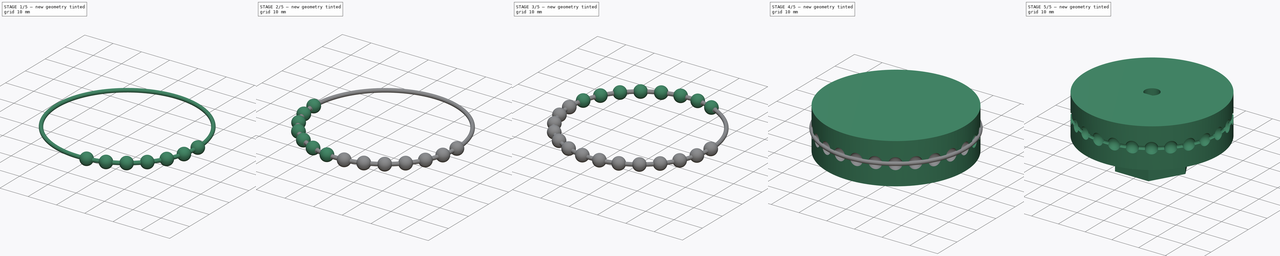
[diagram: build sequence overview — one tinted view per stage of 5, left to right]
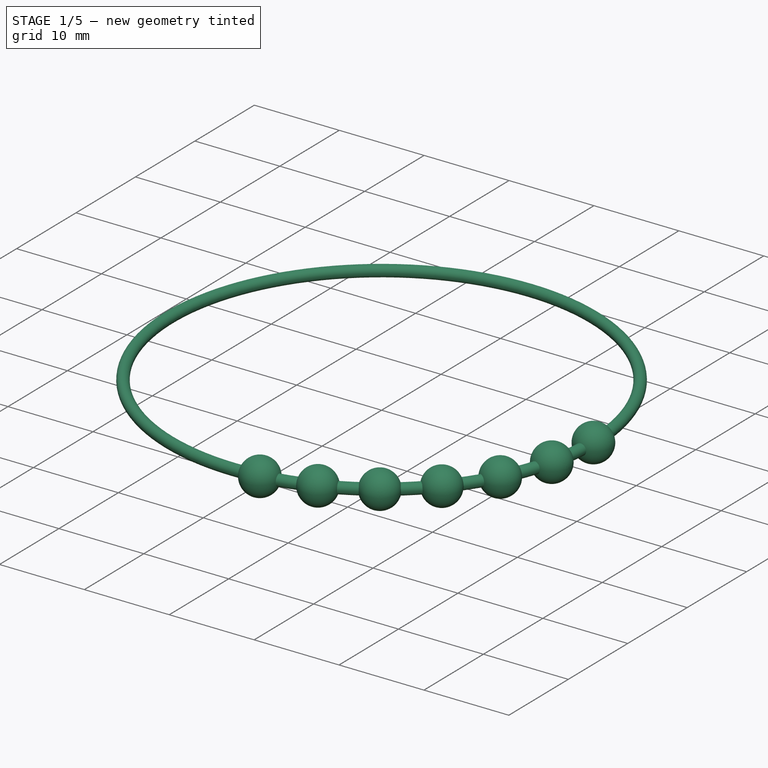
[diagram: stage 1 of 5 — iso view after this stage's code; geometry added in this stage tinted green]
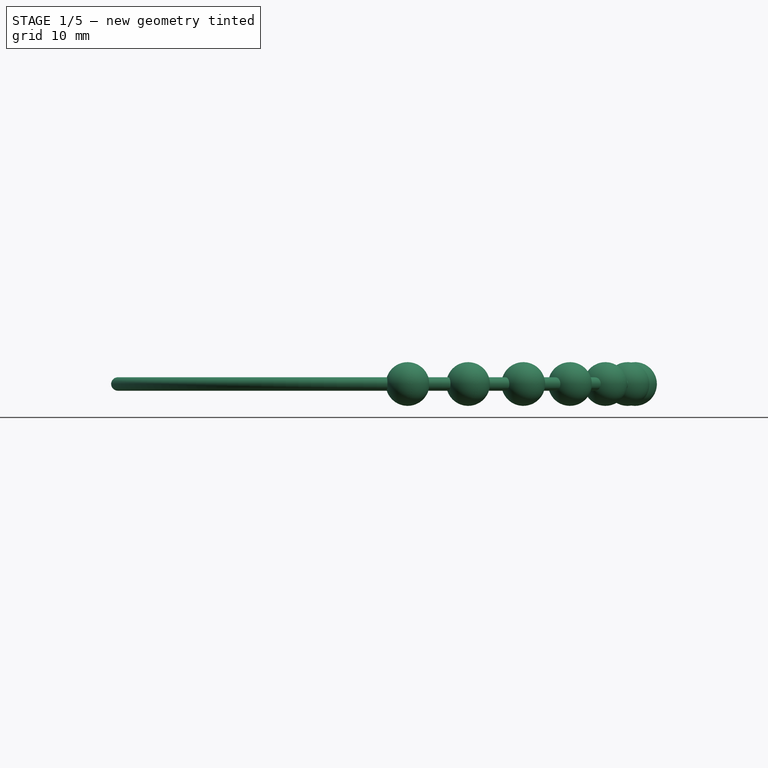
[diagram: stage 1 of 5 — front view after this stage's code; geometry added in this stage tinted green]
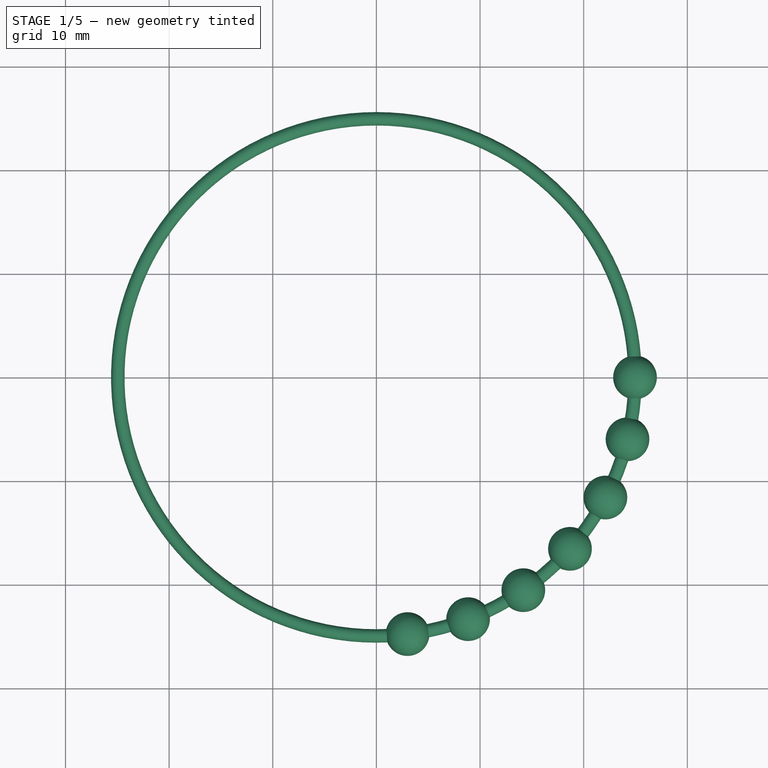
[diagram: stage 1 of 5 — top view after this stage's code; geometry added in this stage tinted green]
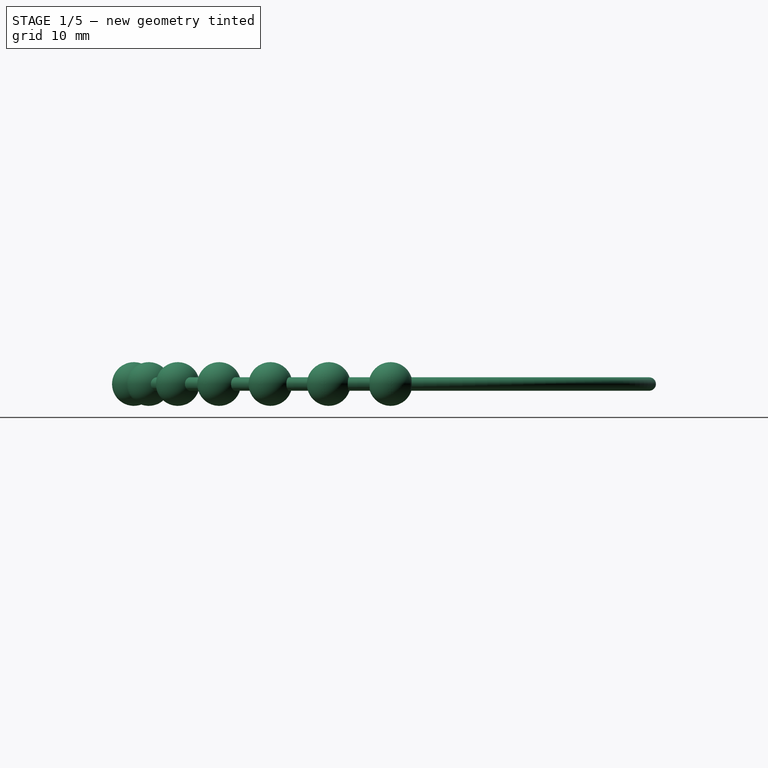
[diagram: stage 1 of 5 — right view after this stage's code; geometry added in this stage tinted green]
FCSTD DOCUMENT  (FreeCAD 0.21R33694 (Git))
Label: agarre parametrico y cortina
License: All rights reserved
LicenseURL: https://en.wikipedia.org/wiki/All_rights_reserved
objects: Part::Sphere×26, PartDesign::SubShapeBinder×5, Sketcher::SketchObject×4, PartDesign::Pocket×4, App::Part×2, PartDesign::Body×2, Part::MultiFuse×2, Part::Cut×2, Part::Part2DObjectPython×2, PartDesign::Pad×1, App::DocumentObjectGroup×1, Part::Cylinder×1, Part::FeaturePython×1, Part::Revolution×1, PartDesign::FeatureBase×1
note: 57 computed .brp shape members not serialized (recipe doc carries the construction recipe); baked Part::Feature solids carry a one-line shape summary decoded from their .brp

FEATURE [Part::Sphere] sphere019
  Angle1 = -90
  Angle2 = 90
  Angle3 = 360
  AttacherType = Attacher::AttachEngine3D
  Placement = pos=(3.00767,-24.7704,0) rot=(0,0,-1;1.44997rad)
  Radius = 2.1075
FEATURE [Part::Sphere] sphere020
  Angle1 = -90
  Angle2 = 90
  Angle3 = 360
  AttacherType = Attacher::AttachEngine3D
  Placement = pos=(8.84821,-23.3308,0) rot=(0,0,-1;1.2083rad)
  Radius = 2.1075
FEATURE [Part::Sphere] sphere021
  Angle1 = -90
  Angle2 = 90
  Angle3 = 360
  AttacherType = Attacher::AttachEngine3D
  Placement = pos=(14.1745,-20.5353,0) rot=(0,0,-1;0.966644rad)
  Radius = 2.1075
FEATURE [Part::Sphere] sphere022
  Angle1 = -90
  Angle2 = 90
  Angle3 = 360
  AttacherType = Attacher::AttachEngine3D
  Placement = pos=(18.6771,-16.5464,0) rot=(0,0,-1;0.724983rad)
  Radius = 2.1075
FEATURE [Part::Sphere] sphere023
  Angle1 = -90
  Angle2 = 90
  Angle3 = 360
  AttacherType = Attacher::AttachEngine3D
  Placement = pos=(22.0942,-11.5959,0) rot=(0,0,-1;0.483322rad)
  Radius = 2.1075
FEATURE [Part::Sphere] sphere024
  Angle1 = -90
  Angle2 = 90
  Angle3 = 360
  AttacherType = Attacher::AttachEngine3D
  Placement = pos=(24.2272,-5.97148,0) rot=(0,0,-1;0.241661rad)
  Radius = 2.1075
FEATURE [Part::Sphere] sphere025
  Angle1 = -90
  Angle2 = 90
  Angle3 = 360
  AttacherType = Attacher::AttachEngine3D
  Placement = pos=(24.9523,0,0) rot=(0,0,1;0rad)
  Radius = 2.1075
FEATURE [Part::Part2DObjectPython] circle  # Draft 2D object (typed FeaturePython)
  Area = 1.31713
  FirstAngle = 0
  LastAngle = 0
  MakeFace = true
  Radius = 0.6475
FEATURE [Part::Part2DObjectPython] Circle  # Draft 2D object (typed FeaturePython)
  Area = 1.31713
  FirstAngle = 0
  LastAngle = 0
  MakeFace = true
  Placement = pos=(24.9523,0,0) rot=(0,0,1;0rad)
  Radius = 0.6475
FEATURE [Part::FeaturePython] RefineRotateExtrude  # WARN: FeaturePython — macro-defined, semantics opaque (R4)
  Base = -> Circle
FEATURE [Part::Revolution] RotateExtrude
  Angle = 360
  Axis = (0,1,0)
  Base = (0,0,0)
  FaceMakerClass = Part::FaceMakerBullseye
  Placement = pos=(0,0,0) rot=(0.57735,-0.57735,-0.57735;2.0944rad)
  Solid = false
  Source = -> RefineRotateExtrude
  Symmetric = false
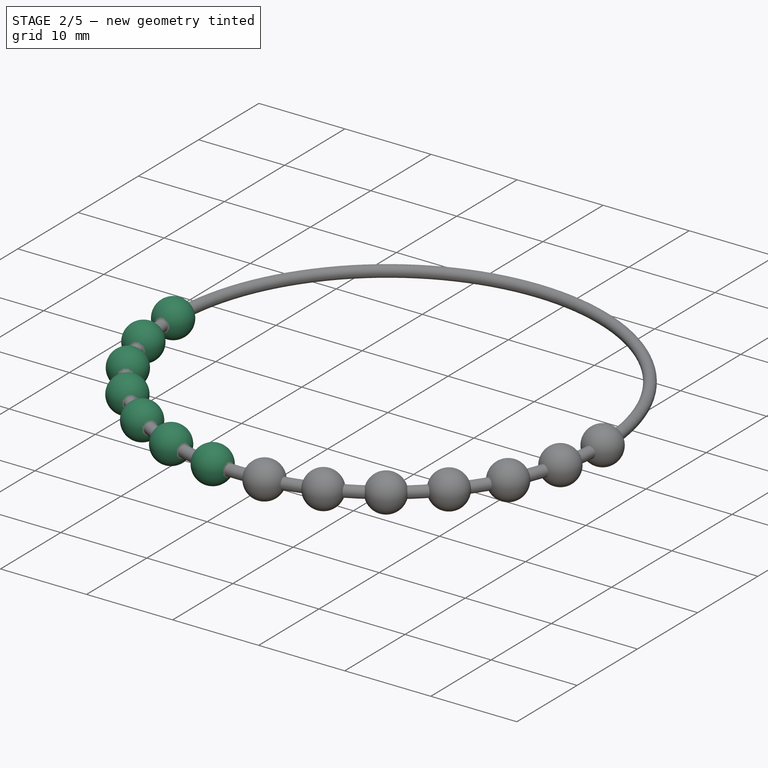
[diagram: stage 2 of 5 — iso view after this stage's code; geometry added in this stage tinted green]
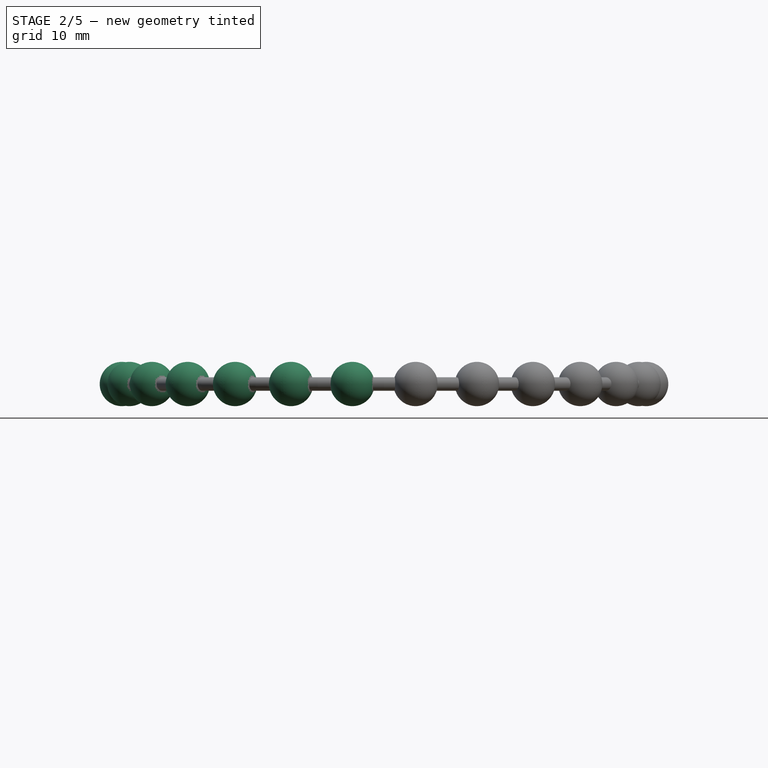
[diagram: stage 2 of 5 — front view after this stage's code; geometry added in this stage tinted green]
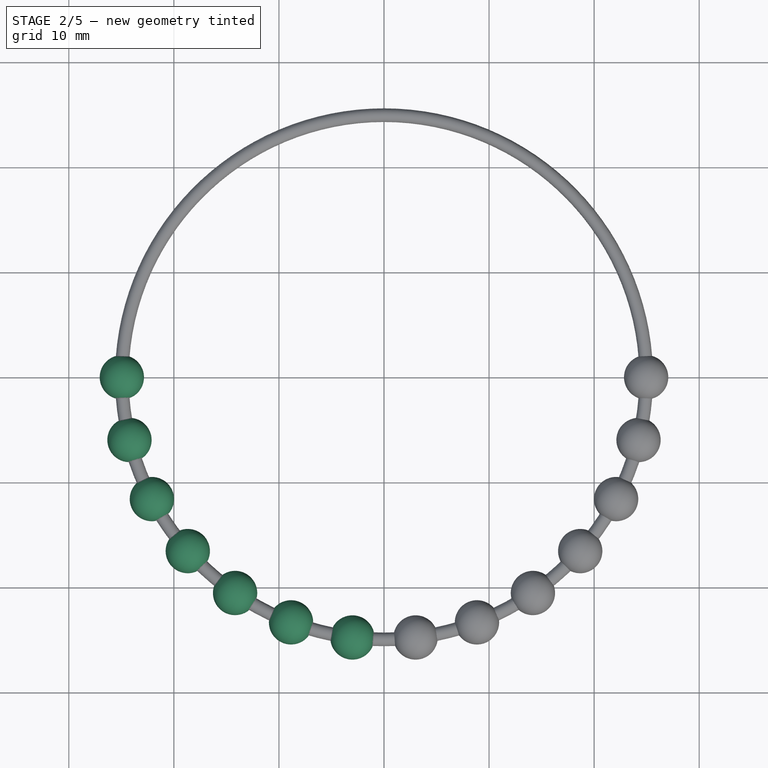
[diagram: stage 2 of 5 — top view after this stage's code; geometry added in this stage tinted green]
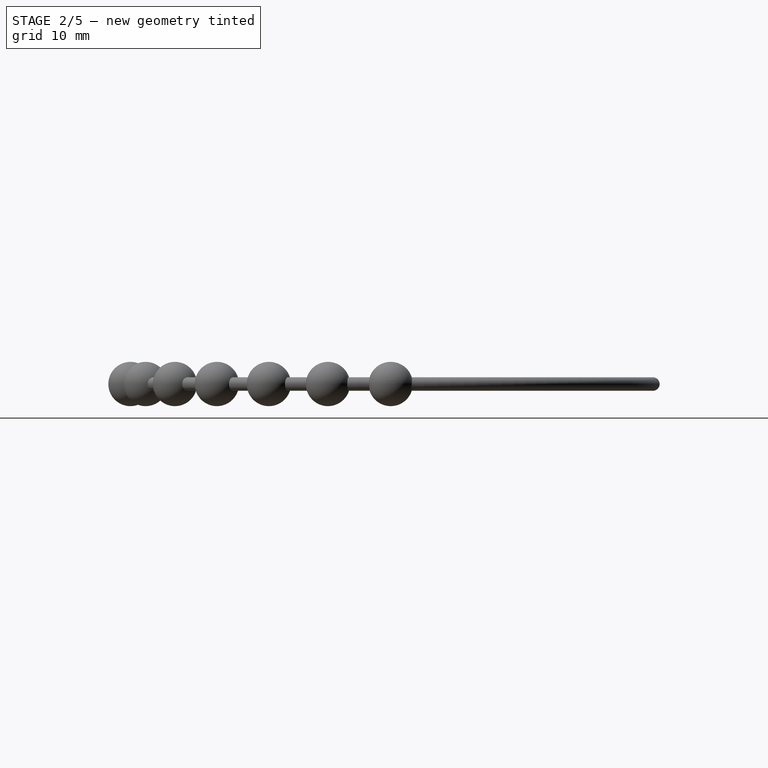
[diagram: stage 2 of 5 — right view after this stage's code; geometry added in this stage tinted green]
FEATURE [Part::Sphere] sphere012
  Angle1 = -90
  Angle2 = 90
  Angle3 = 360
  AttacherType = Attacher::AttachEngine3D
  Placement = pos=(-24.9523,3.1e-15,0) rot=(0,0,1;3.14159rad)
  Radius = 2.1075
FEATURE [Part::Sphere] sphere013
  Angle1 = -90
  Angle2 = 90
  Angle3 = 360
  AttacherType = Attacher::AttachEngine3D
  Placement = pos=(-24.2272,-5.97148,0) rot=(0,0,1;3.38325rad)
  Radius = 2.1075
FEATURE [Part::Sphere] sphere014
  Angle1 = -90
  Angle2 = 90
  Angle3 = 360
  AttacherType = Attacher::AttachEngine3D
  Placement = pos=(-22.0942,-11.5959,0) rot=(0,0,1;3.62491rad)
  Radius = 2.1075
FEATURE [Part::Sphere] sphere015
  Angle1 = -90
  Angle2 = 90
  Angle3 = 360
  AttacherType = Attacher::AttachEngine3D
  Placement = pos=(-18.6771,-16.5464,0) rot=(0,0,1;3.86658rad)
  Radius = 2.1075
FEATURE [Part::Sphere] sphere016
  Angle1 = -90
  Angle2 = 90
  Angle3 = 360
  AttacherType = Attacher::AttachEngine3D
  Placement = pos=(-14.1745,-20.5353,0) rot=(0,0,1;4.10824rad)
  Radius = 2.1075
FEATURE [Part::Sphere] sphere017
  Angle1 = -90
  Angle2 = 90
  Angle3 = 360
  AttacherType = Attacher::AttachEngine3D
  Placement = pos=(-8.84821,-23.3308,0) rot=(0,0,-1;1.93329rad)
  Radius = 2.1075
FEATURE [Part::Sphere] sphere018
  Angle1 = -90
  Angle2 = 90
  Angle3 = 360
  AttacherType = Attacher::AttachEngine3D
  Placement = pos=(-3.00767,-24.7704,0) rot=(0,0,-1;1.69163rad)
  Radius = 2.1075
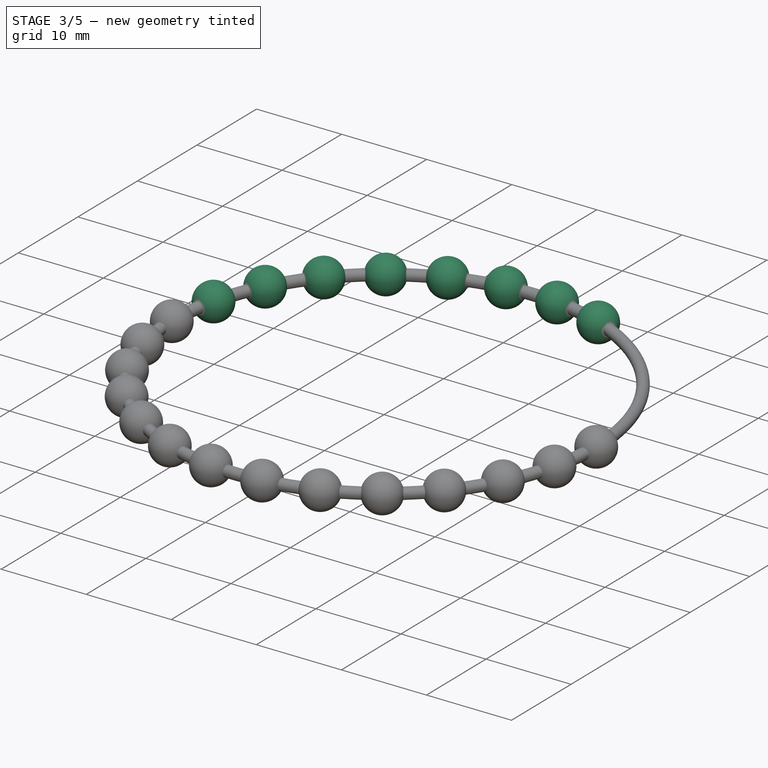
[diagram: stage 3 of 5 — iso view after this stage's code; geometry added in this stage tinted green]
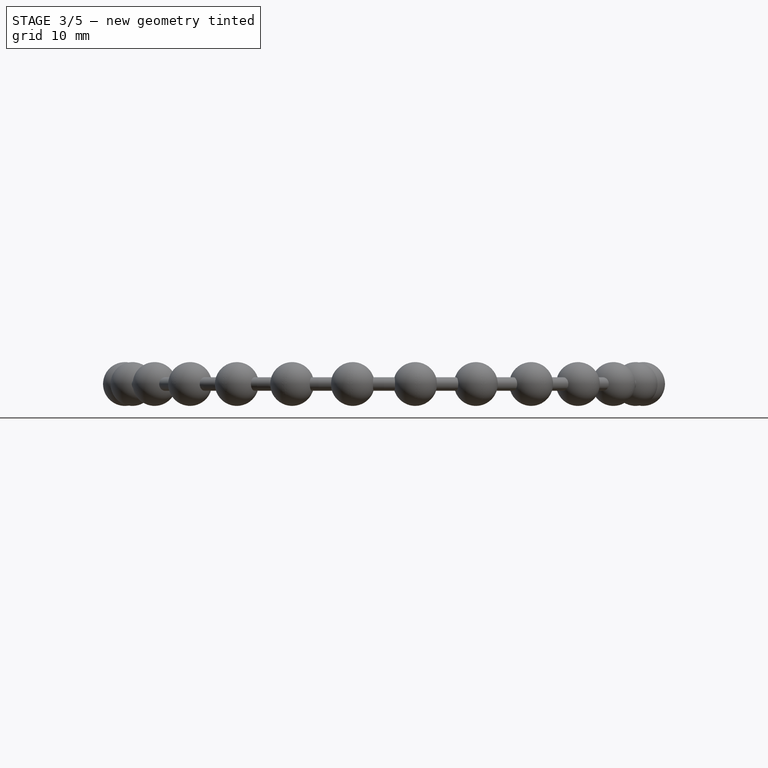
[diagram: stage 3 of 5 — front view after this stage's code; geometry added in this stage tinted green]
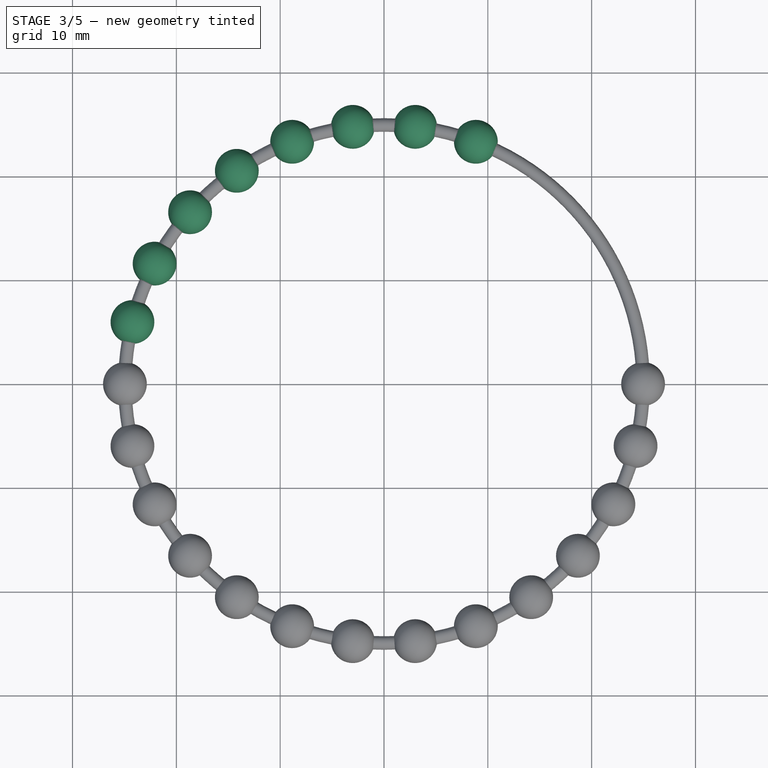
[diagram: stage 3 of 5 — top view after this stage's code; geometry added in this stage tinted green]
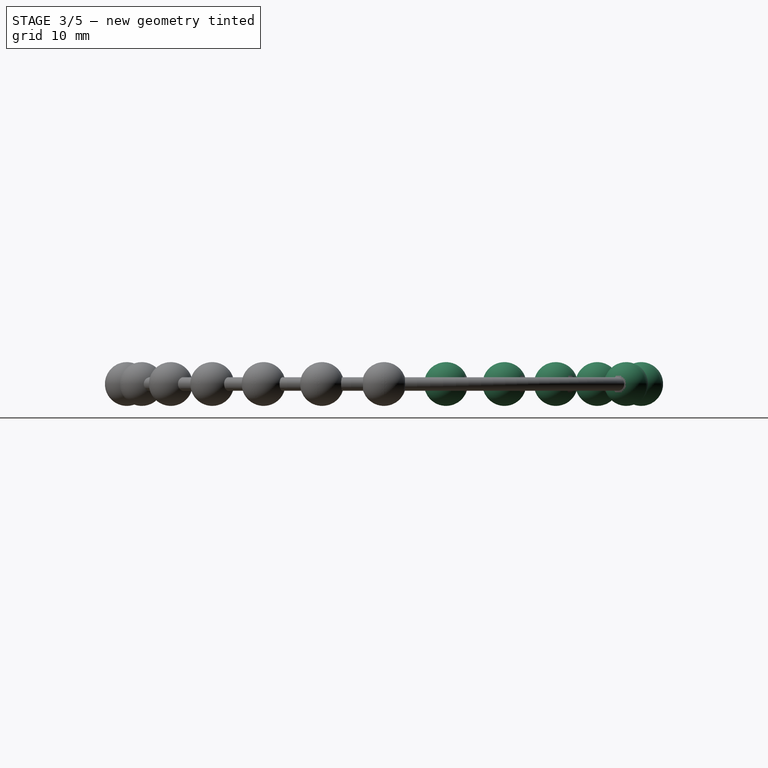
[diagram: stage 3 of 5 — right view after this stage's code; geometry added in this stage tinted green]
FEATURE [Part::Sphere] sphere004
  Angle1 = -90
  Angle2 = 90
  Angle3 = 360
  AttacherType = Attacher::AttachEngine3D
  Placement = pos=(8.84821,23.3308,0) rot=(0,0,1;1.2083rad)
  Radius = 2.1075
FEATURE [Part::Sphere] sphere005
  Angle1 = -90
  Angle2 = 90
  Angle3 = 360
  AttacherType = Attacher::AttachEngine3D
  Placement = pos=(3.00767,24.7704,0) rot=(0,0,1;1.44997rad)
  Radius = 2.1075
FEATURE [Part::Sphere] sphere006
  Angle1 = -90
  Angle2 = 90
  Angle3 = 360
  AttacherType = Attacher::AttachEngine3D
  Placement = pos=(-3.00767,24.7704,0) rot=(0,0,1;1.69163rad)
  Radius = 2.1075
FEATURE [Part::Sphere] sphere007
  Angle1 = -90
  Angle2 = 90
  Angle3 = 360
  AttacherType = Attacher::AttachEngine3D
  Placement = pos=(-8.84821,23.3308,0) rot=(0,0,1;1.93329rad)
  Radius = 2.1075
FEATURE [Part::Sphere] sphere008
  Angle1 = -90
  Angle2 = 90
  Angle3 = 360
  AttacherType = Attacher::AttachEngine3D
  Placement = pos=(-14.1745,20.5353,0) rot=(0,0,1;2.17495rad)
  Radius = 2.1075
FEATURE [Part::Sphere] sphere009
  Angle1 = -90
  Angle2 = 90
  Angle3 = 360
  AttacherType = Attacher::AttachEngine3D
  Placement = pos=(-18.6771,16.5464,0) rot=(0,0,1;2.41661rad)
  Radius = 2.1075
FEATURE [Part::Sphere] sphere010
  Angle1 = -90
  Angle2 = 90
  Angle3 = 360
  AttacherType = Attacher::AttachEngine3D
  Placement = pos=(-22.0942,11.5959,0) rot=(0,0,1;2.65827rad)
  Radius = 2.1075
FEATURE [Part::Sphere] sphere011
  Angle1 = -90
  Angle2 = 90
  Angle3 = 360
  AttacherType = Attacher::AttachEngine3D
  Placement = pos=(-24.2272,5.97148,0) rot=(0,0,1;2.89993rad)
  Radius = 2.1075
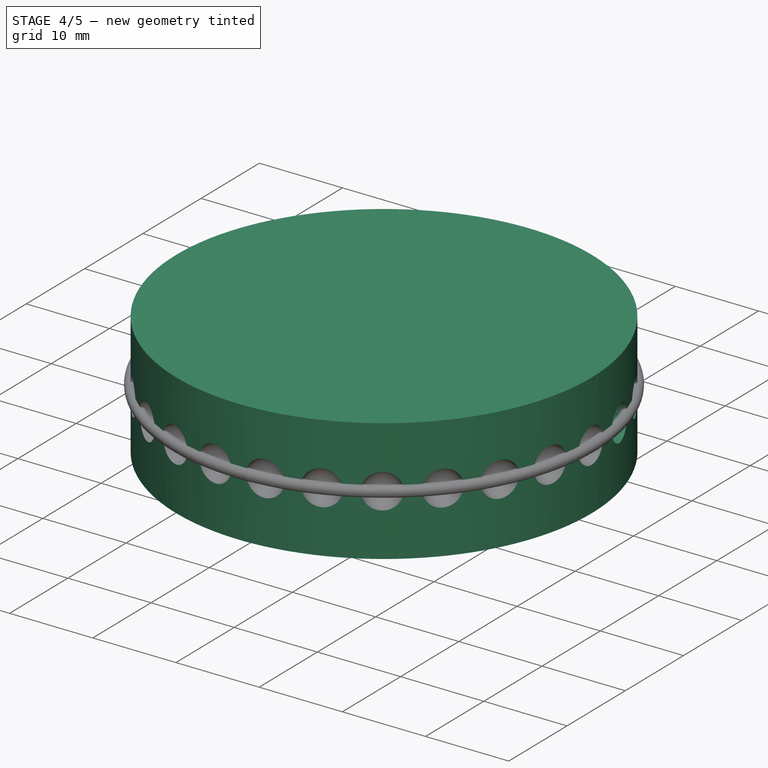
[diagram: stage 4 of 5 — iso view after this stage's code; geometry added in this stage tinted green]
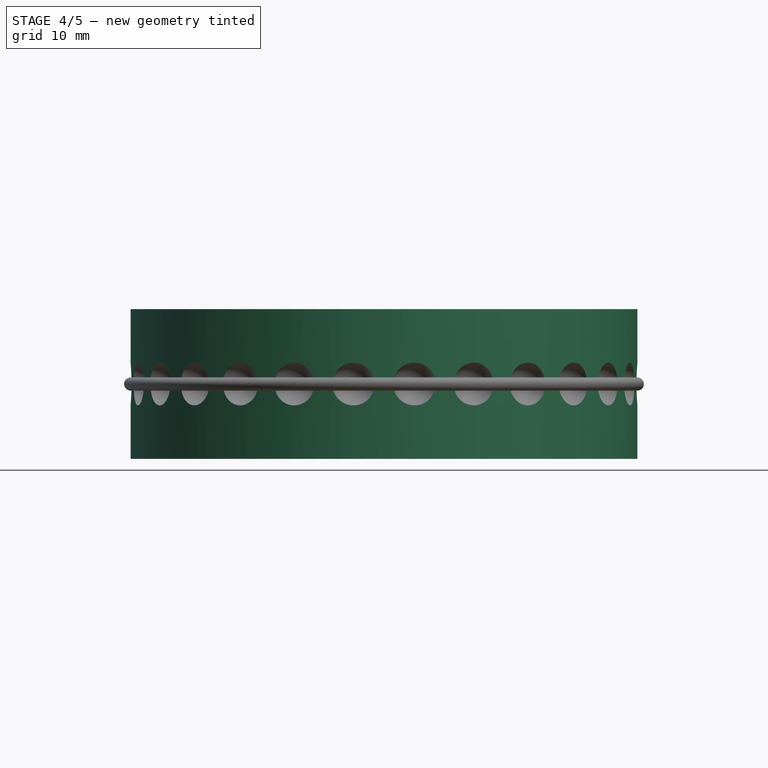
[diagram: stage 4 of 5 — front view after this stage's code; geometry added in this stage tinted green]
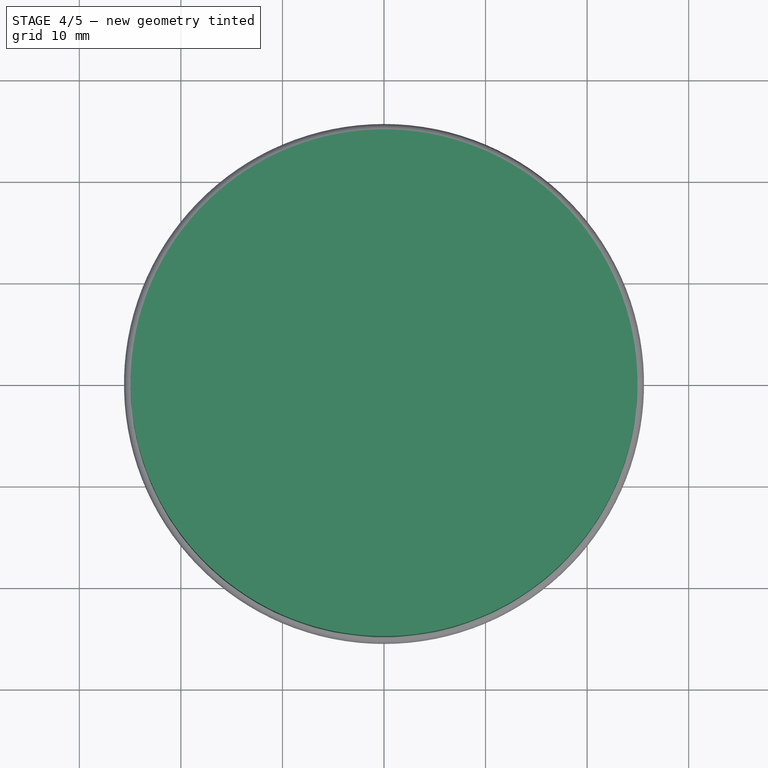
[diagram: stage 4 of 5 — top view after this stage's code; geometry added in this stage tinted green]
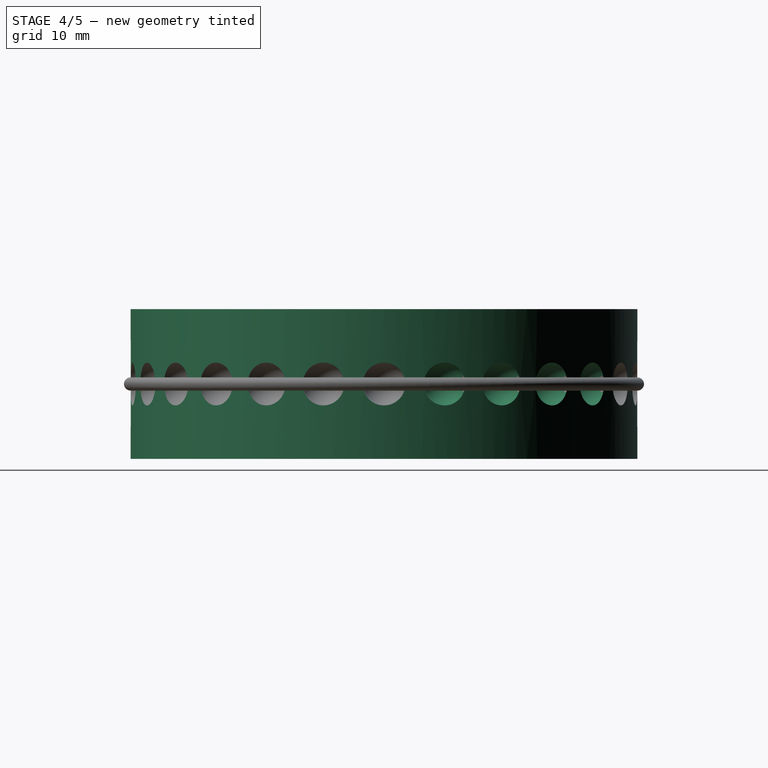
[diagram: stage 4 of 5 — right view after this stage's code; geometry added in this stage tinted green]
FEATURE [PartDesign::Body] Body  label="agarre"
  Group = -> [Binder,Pad,Binder001,Pocket,Binder002,Pocket001,Binder003,Pocket002]
  Origin = -> Origin001
  Tip = -> Pocket002
FEATURE [Part::Cylinder] cylinder
  Angle = 360
  AttacherType = Attacher::AttachEngine3D
  FirstAngle = 0
  Height = 14.7525
  Placement = pos=(0,0,-7.37625) rot=(0,0,1;0rad)
  Radius = 24.9523
  SecondAngle = 0
FEATURE [Part::Sphere] sphere
  Angle1 = -90
  Angle2 = 90
  Angle3 = 360
  AttacherType = Attacher::AttachEngine3D
  Placement = pos=(24.2272,5.97148,0) rot=(0,0,1;0.241661rad)
  Radius = 2.1075
FEATURE [Part::Sphere] sphere001
  Angle1 = -90
  Angle2 = 90
  Angle3 = 360
  AttacherType = Attacher::AttachEngine3D
  Placement = pos=(22.0942,11.5959,0) rot=(0,0,1;0.483322rad)
  Radius = 2.1075
FEATURE [Part::Sphere] sphere002
  Angle1 = -90
  Angle2 = 90
  Angle3 = 360
  AttacherType = Attacher::AttachEngine3D
  Placement = pos=(18.6771,16.5464,0) rot=(0,0,1;0.724983rad)
  Radius = 2.1075
FEATURE [Part::Sphere] sphere003
  Angle1 = -90
  Angle2 = 90
  Angle3 = 360
  AttacherType = Attacher::AttachEngine3D
  Placement = pos=(14.1745,20.5353,0) rot=(0,0,1;0.966644rad)
  Radius = 2.1075
FEATURE [Part::MultiFuse] Group001
  Shapes = -> [sphere,sphere001,sphere002,sphere003,sphere004,sphere005,sphere006,sphere007,sphere008,sphere009,sphere010,sphere011,sphere012,sphere013,sphere014,sphere015,sphere016,sphere017,sphere018,sphere019,sphere020,sphere021,sphere022,sphere023,sphere024,sphere025]
FEATURE [Part::Cut] difference
  Base = -> cylinder
  Tool = -> Group001
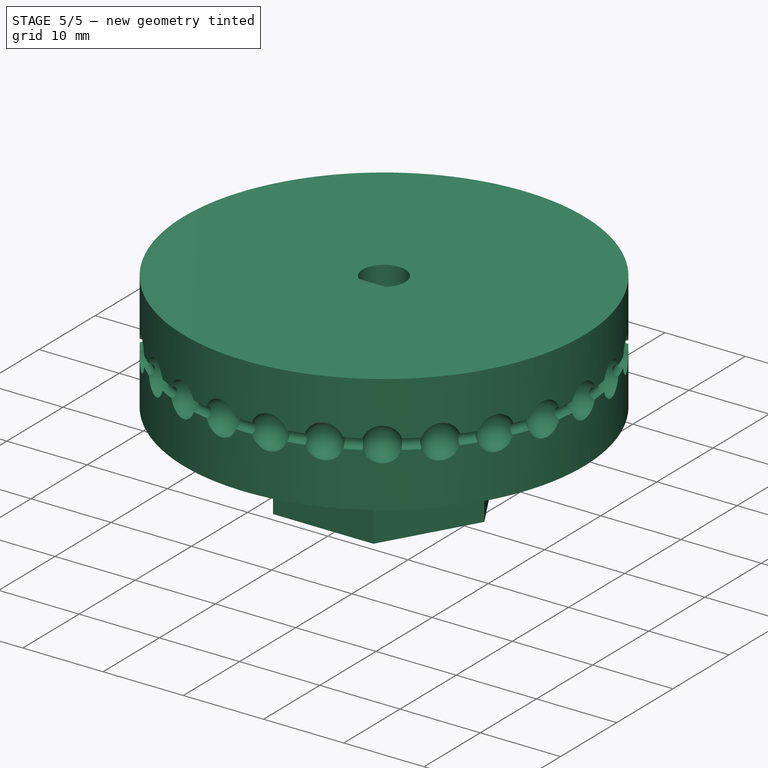
[diagram: stage 5 of 5 — iso view after this stage's code; geometry added in this stage tinted green]
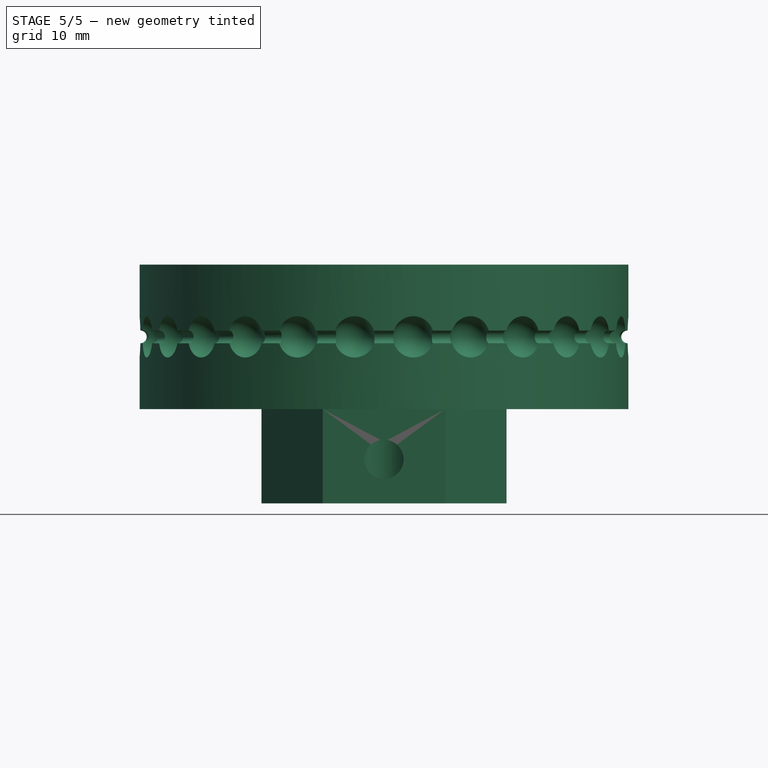
[diagram: stage 5 of 5 — front view after this stage's code; geometry added in this stage tinted green]
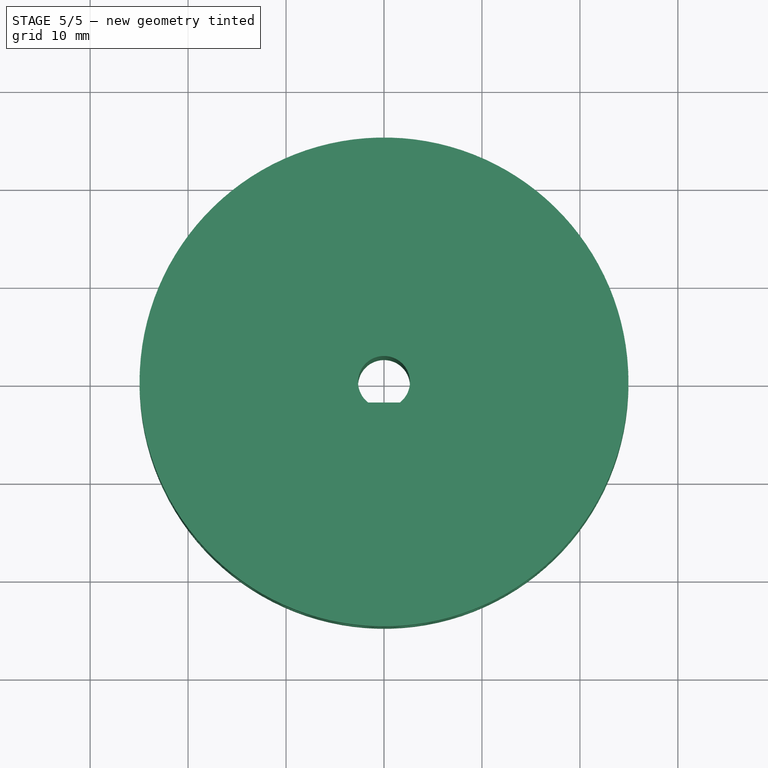
[diagram: stage 5 of 5 — top view after this stage's code; geometry added in this stage tinted green]
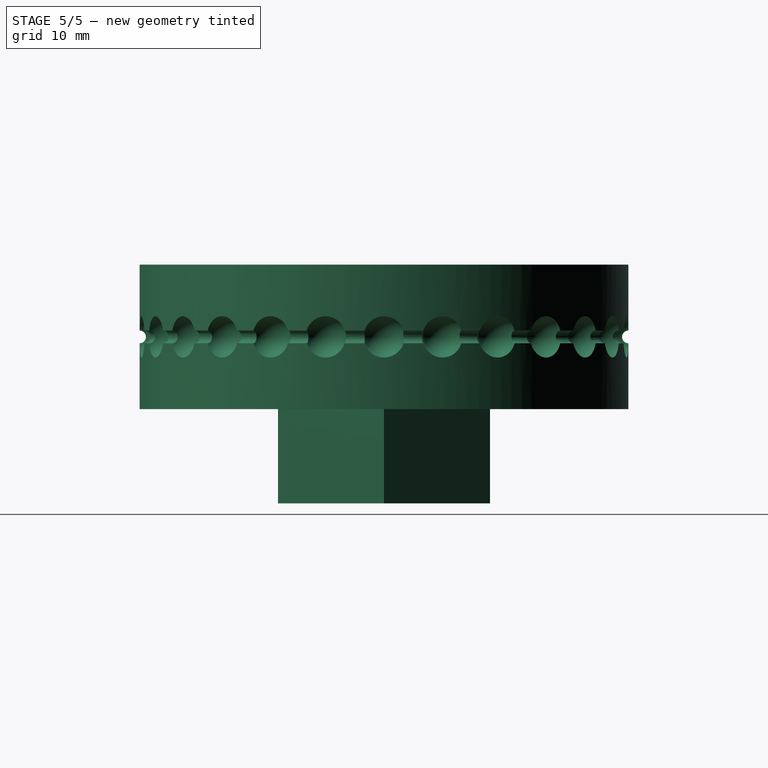
[diagram: stage 5 of 5 — right view after this stage's code; geometry added in this stage tinted green]
FEATURE [Sketcher::SketchObject] Sketch  label="base"
  FullyConstrained = true
  MapMode = 5
  Support = -> [XY_Plane]
  sketch-geometry (7):
    g0: LineSegment StartX=12.5 StartY=0 StartZ=0 EndX=6.25 EndY=10.8253 EndZ=0
    g1: LineSegment StartX=6.25 StartY=10.8253 StartZ=0 EndX=-6.25 EndY=10.8253 EndZ=0
    g2: LineSegment StartX=-6.25 StartY=10.8253 StartZ=0 EndX=-12.5 EndY=0 EndZ=0
    g3: LineSegment StartX=-12.5 StartY=0 StartZ=0 EndX=-6.25 EndY=-10.8253 EndZ=0
    g4: LineSegment StartX=-6.25 StartY=-10.8253 StartZ=0 EndX=6.25 EndY=-10.8253 EndZ=0
    g5: LineSegment StartX=6.25 StartY=-10.8253 StartZ=0 EndX=12.5 EndY=0 EndZ=0
    g6: Circle CenterX=0 CenterY=0 CenterZ=0 NormalX=0 NormalY=0 NormalZ=1 AngleXU=0 Radius=12.5
  constraints (16):
    c: Coincident(g0,g1)
    c: Coincident(g1,g2)
    c: Coincident(g2,g3)
    c: Coincident(g3,g4)
    c: Coincident(g4,g5)
    c: Coincident(g5,g0)
    c: Equal(g0, g1-g5) x5
    c: PointOnObject(g0,g6)
    c: PointOnObject(g1,g6)
    c: PointOnObject(g2,g6)
    c: PointOnObject(g3,g6)
    c: PointOnObject(g4,g6)
    c: PointOnObject(g5,g6)
    c: Coincident(g6,g-1)
    c: PointOnObject(g5,g-1)
    c: Diameter(g6) = 25
FEATURE [PartDesign::SubShapeBinder] Binder
  BindCopyOnChange = 0
  BindMode = 0
  ClaimChildren = false
  Context = -> Part [Body.Binder.]
  Fuse = false
  MakeFace = true
  OffsetFill = false
  OffsetIntersection = false
  OffsetJoinType = 0
  OffsetOpenResult = false
  PartialLoad = false
  Relative = true
  Support = -> [Group[Sketch.]]
  _Version = 2
FEATURE [PartDesign::Pad] Pad
  Direction = (0,0,1)
  Length = 10
  Length2 = 10
  Profile = -> Binder
  Type = 0
FEATURE [Sketcher::SketchObject] Sketch001  label="eje"
  FullyConstrained = true
  MapMode = 5
  Support = -> [XY_Plane]
  sketch-geometry (2):
    g0: ArcOfCircle CenterX=0 CenterY=0 CenterZ=0 NormalX=0 NormalY=0 NormalZ=1 AngleXU=0 Radius=2.65 StartAngle=5.36837 EndAngle=10.3396
    g1: LineSegment StartX=-1.61632 StartY=-2.1 StartZ=0 EndX=1.61632 EndY=-2.1 EndZ=0
  constraints (6):
    c: Coincident(g0,g-1)
    c: Diameter(g0) = 5.3
    c: Horizontal(g1)
    c: Distance(g0,g1) = 2.1
    c: Coincident(g0,g1)
    c: Coincident(g0,g1)
FEATURE [PartDesign::SubShapeBinder] Binder001
  BindCopyOnChange = 0
  BindMode = 0
  ClaimChildren = false
  Context = -> Part [Body.Binder001.]
  Fuse = false
  MakeFace = true
  OffsetFill = false
  OffsetIntersection = false
  OffsetJoinType = 0
  OffsetOpenResult = false
  PartialLoad = false
  Relative = true
  Support = -> [Group[Sketch001.]]
  _Version = 2
FEATURE [PartDesign::Pocket] Pocket
  BaseFeature = -> Pad
  Direction = (0,0,-1)
  Length = 10
  Length2 = 5
  Profile = -> Binder001
  Reversed = true
  Type = 0
FEATURE [Sketcher::SketchObject] Sketch002  label="hueco tuerca"
  FullyConstrained = true
  MapMode = 5
  Support = -> [XY_Plane]
  sketch-geometry (4):
    g0: LineSegment StartX=-4 StartY=-5 StartZ=0 EndX=4 EndY=-5 EndZ=0
    g1: LineSegment StartX=4 StartY=-5 StartZ=0 EndX=4 EndY=-8.5 EndZ=0
    g2: LineSegment StartX=4 StartY=-8.5 StartZ=0 EndX=-4 EndY=-8.5 EndZ=0
    g3: LineSegment StartX=-4 StartY=-8.5 StartZ=0 EndX=-4 EndY=-5 EndZ=0
  constraints (12):
    c: Coincident(g0,g1)
    c: Coincident(g1,g2)
    c: Coincident(g2,g3)
    c: Coincident(g3,g0)
    c: Horizontal(g0)
    c: Horizontal(g2)
    c: Vertical(g1)
    c: Vertical(g3)
    c: DistanceY(g1,g1) = 3.5
    c: DistanceX(g0,g0) = 8
    c: Distance(g-1,g1) = 4
    c: Distance(g-1,g0) = 5
FEATURE [PartDesign::SubShapeBinder] Binder002
  BindCopyOnChange = 0
  BindMode = 0
  ClaimChildren = false
  Context = -> Part [Body.Binder002.]
  Fuse = false
  MakeFace = true
  OffsetFill = false
  OffsetIntersection = false
  OffsetJoinType = 0
  OffsetOpenResult = false
  PartialLoad = false
  Relative = true
  Support = -> [Group[Sketch002.]]
  _Version = 2
FEATURE [PartDesign::Pocket] Pocket001
  BaseFeature = -> Pocket
  Direction = (0,0,-1)
  Length = 9
  Length2 = 5
  Profile = -> Binder002
  Reversed = true
  Type = 0
FEATURE [Sketcher::SketchObject] Sketch003  label="hueco tornillo"
  FullyConstrained = true
  MapMode = 5
  Placement = pos=(0,0,0) rot=(1,0,0;1.5708rad)
  Support = -> [XZ_Plane]
  sketch-geometry (1):
    g0: Circle CenterX=0 CenterY=4.5 CenterZ=0 NormalX=0 NormalY=0 NormalZ=1 AngleXU=0 Radius=2
  constraints (3):
    c: PointOnObject(g0,g-2)
    c: Diameter(g0) = 4
    c: Distance(g0,g-1) = 4.5
FEATURE [App::DocumentObjectGroup] Group  label="sk"
  Group = -> [Sketch,Sketch001,Sketch002,Sketch003]
FEATURE [App::Part] Part
  Group = -> [Group,Sketch,Sketch001,Sketch002,Sketch003]
  Origin = -> Origin
FEATURE [PartDesign::SubShapeBinder] Binder003
  BindCopyOnChange = 0
  BindMode = 0
  ClaimChildren = false
  Context = -> Part [Body.Binder003.]
  Fuse = false
  MakeFace = true
  OffsetFill = false
  OffsetIntersection = false
  OffsetJoinType = 0
  OffsetOpenResult = false
  PartialLoad = false
  Relative = true
  Support = -> [Group[Sketch003.]]
  _Version = 2
FEATURE [PartDesign::Pocket] Pocket002
  BaseFeature = -> Pocket001
  Direction = (0,-1,-2e-16)
  Length = 5
  Length2 = 5
  Profile = -> Binder003
  Type = 1
FEATURE [Part::Cut] difference001
  Base = -> difference
  Placement = pos=(0,0,17) rot=(0,0,1;0rad)
  Tool = -> RotateExtrude
FEATURE [PartDesign::FeatureBase] BaseFeature
  BaseFeature = -> difference001
FEATURE [PartDesign::SubShapeBinder] Binder004
  BindCopyOnChange = 0
  BindMode = 0
  ClaimChildren = false
  Context = -> Part001 [Body001.Binder004.]
  Fuse = false
  MakeFace = true
  OffsetFill = false
  OffsetIntersection = false
  OffsetJoinType = 0
  OffsetOpenResult = false
  PartialLoad = false
  Relative = true
  Support = -> [Part[Group.Sketch001.]]
  _Version = 2
FEATURE [PartDesign::Pocket] Pocket003
  BaseFeature = -> BaseFeature
  Direction = (0,0,-1)
  Length = 10
  Length2 = 100
  Profile = -> Binder004
  Type = 4
FEATURE [PartDesign::Body] Body001  label="poleas"
  BaseFeature = -> difference001
  Group = -> [BaseFeature,Binder004,Pocket003]
  Origin = -> Origin003
  Placement = pos=(0,0,17) rot=(0,0,1;0rad)
  Tip = -> Pocket003
FEATURE [Part::MultiFuse] Fusion
  Shapes = -> [Body,Body001]
FEATURE [App::Part] Part001
  Group = -> [Body,cylinder,sphere,sphere001,sphere002,sphere003,sphere004,sphere005,sphere006,sphere007,sphere008,sphere009,sphere010,sphere011,sphere012,sphere013,sphere014,sphere015,sphere016,sphere017,sphere018,sphere019,sphere020,sphere021,sphere022,sphere023,sphere024,sphere025,Group001,difference,Circle,RefineRotateExtrude,RotateExtrude,difference001,Body001,Fusion]
  Origin = -> Origin002
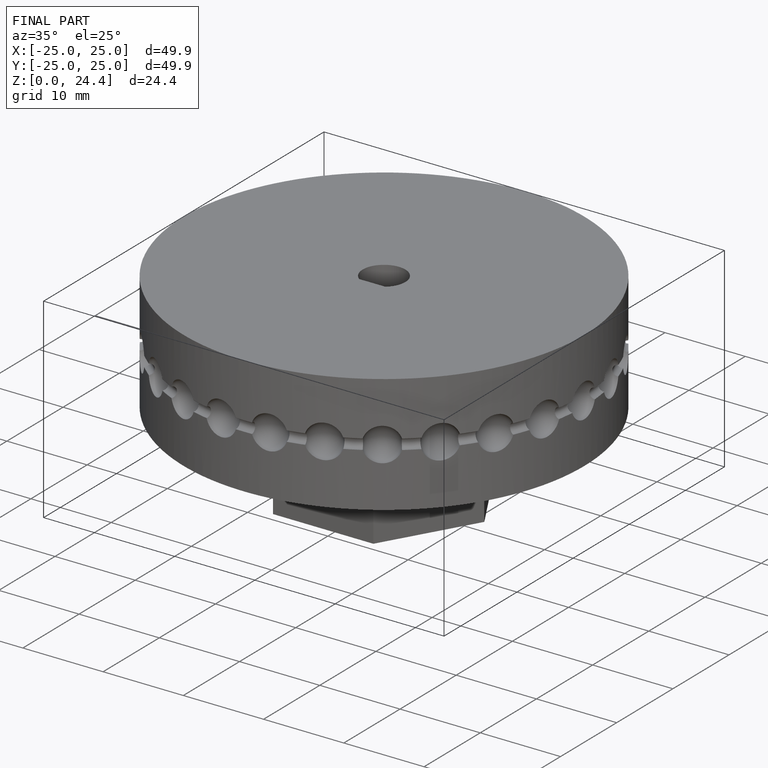
[diagram: finished part — iso view with bounding-box wireframe]
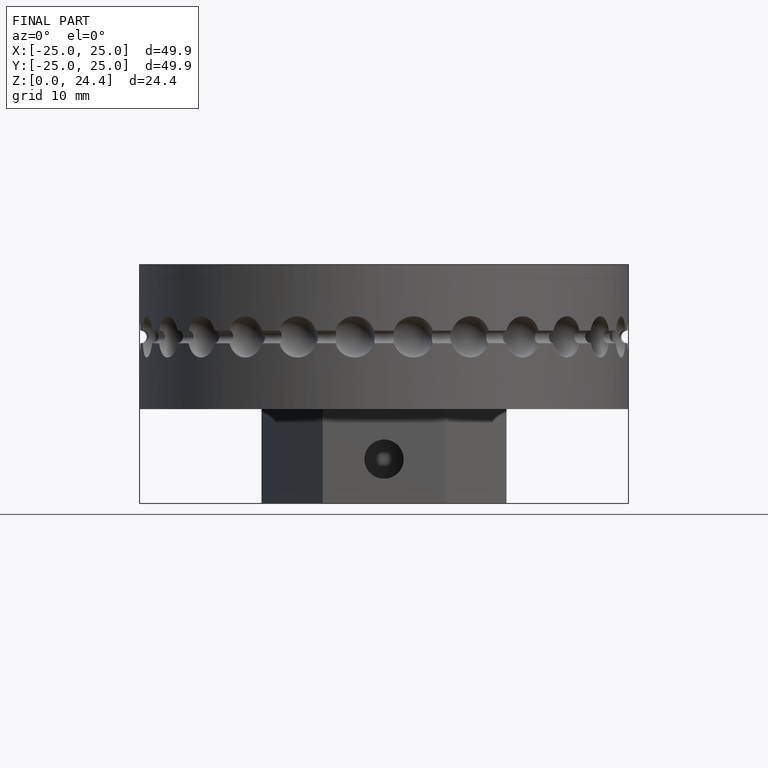
[diagram: finished part — front view with bounding-box wireframe]
